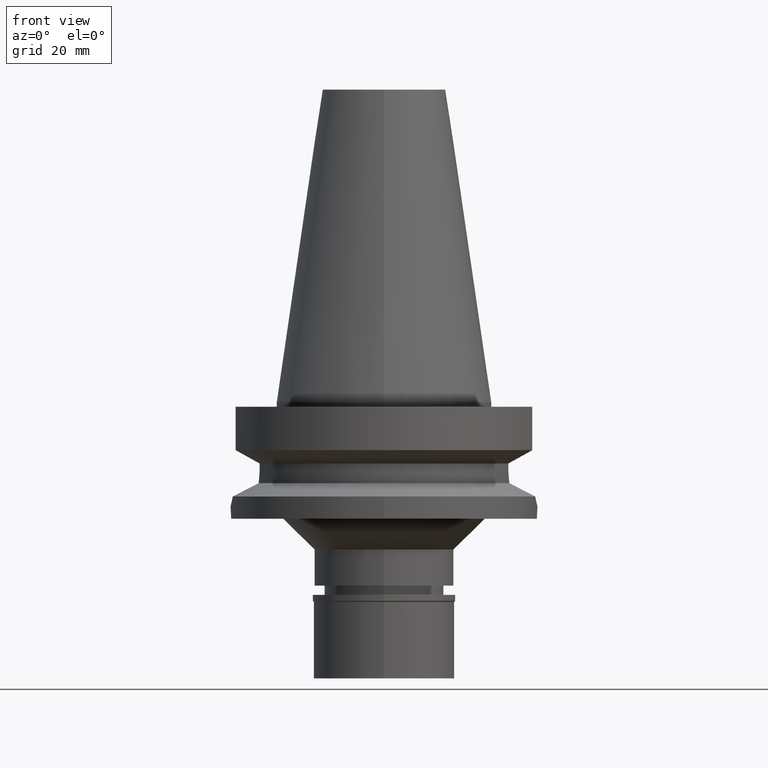
[diagram: clean part render]
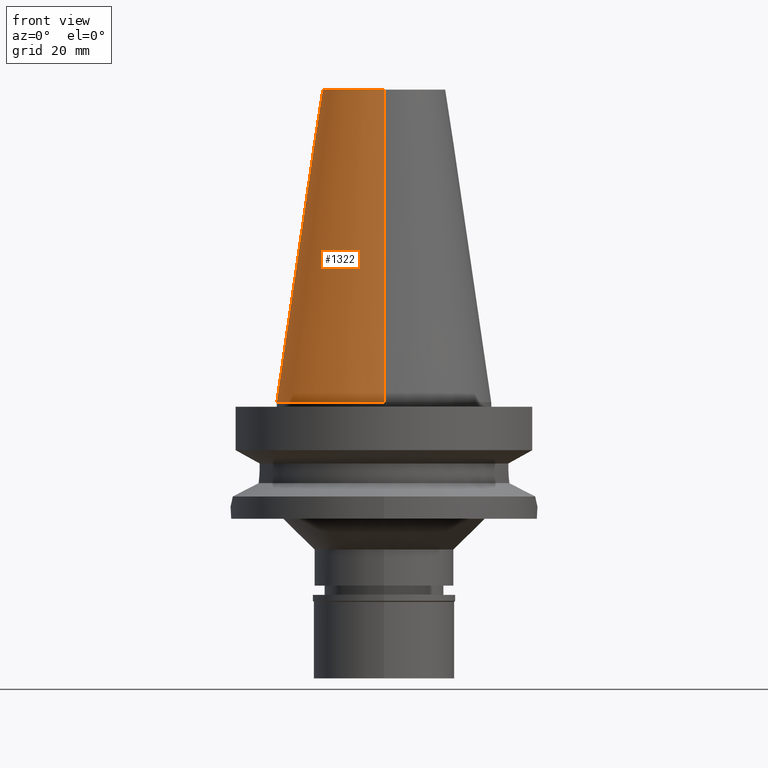
[diagram: same view with one face highlighted and labeled with its STEP entity id]
A machine part, front view. The second image highlights one B-rep face of the part: STEP entity #1322.
In plain terms, the highlighted conical surface has half-angle 8.297 deg.
Its self-contained STEP definition (entity closure, byte-faithful):
#117 = CONICAL_SURFACE ( 'NONE', #857, 27.50221485948000222, 0.1448099680379422438 ) ;
#183 = EDGE_CURVE ( 'NONE', #1285, #376, #684, .T. ) ;
#209 = CARTESIAN_POINT ( 'NONE',  ( 0.0000000000000000000, -20.07942971896000017, 101.7999999999999972 ) ) ;
#327 = CIRCLE ( 'NONE', #1530, 34.92499999999999716 ) ;
#343 = FACE_OUTER_BOUND ( 'NONE', #2591, .T. ) ;
#376 = VERTEX_POINT ( 'NONE', #810 ) ;
#394 = DIRECTION ( 'NONE',  ( 0.0000000000000000000, -0.1443043893538948075, -0.9895333461855641000 ) ) ;
#452 = DIRECTION ( 'NONE',  ( 0.0000000000000000000, -1.000000000000000000, 0.0000000000000000000 ) ) ;
#553 = EDGE_CURVE ( 'NONE', #2624, #880, #1353, .T. ) ;
#602 = ORIENTED_EDGE ( 'NONE', *, *, #2532, .F. ) ;
#645 = DIRECTION ( 'NONE',  ( 0.0000000000000000000, 0.0000000000000000000, -1.000000000000000000 ) ) ;
#684 = LINE ( 'NONE', #1192, #1164 ) ;
#798 = ORIENTED_EDGE ( 'NONE', *, *, #1612, .T. ) ;
#810 = CARTESIAN_POINT ( 'NONE',  ( 0.0000000000000000000, 34.92499999999999716, 4.263256414560999963E-13 ) ) ;
#857 = AXIS2_PLACEMENT_3D ( 'NONE', #2664, #1944, #1257 ) ;
#880 = VERTEX_POINT ( 'NONE', #2901 ) ;
#1007 = ORIENTED_EDGE ( 'NONE', *, *, #553, .F. ) ;
#1103 = DIRECTION ( 'NONE',  ( 0.0000000000000000000, -1.000000000000000000, 0.0000000000000000000 ) ) ;
#1159 = AXIS2_PLACEMENT_3D ( 'NONE', #1771, #2767, #452 ) ;
#1164 = VECTOR ( 'NONE', #1469, 1000.000000000000114 ) ;
#1192 = CARTESIAN_POINT ( 'NONE',  ( 0.0000000000000000000, 20.07942971896000017, 101.7999999999999972 ) ) ;
#1257 = DIRECTION ( 'NONE',  ( 0.0000000000000000000, -1.000000000000000000, 0.0000000000000000000 ) ) ;
#1285 = VERTEX_POINT ( 'NONE', #1643 ) ;
#1322 = ADVANCED_FACE ( 'NONE', ( #343 ), #117, .T. ) ;
#1348 = CARTESIAN_POINT ( 'NONE',  ( 0.0000000000000000000, 1.847992019912999597E-14, 3.979039320256999774E-13 ) ) ;
#1353 = LINE ( 'NONE', #3007, #2607 ) ;
#1469 = DIRECTION ( 'NONE',  ( 0.0000000000000000000, 0.1443043893538948075, -0.9895333461855641000 ) ) ;
#1530 = AXIS2_PLACEMENT_3D ( 'NONE', #1348, #645, #1103 ) ;
#1612 = EDGE_CURVE ( 'NONE', #2624, #1285, #2096, .T. ) ;
#1643 = CARTESIAN_POINT ( 'NONE',  ( 0.0000000000000000000, 20.07942971896000017, 101.7999999999999972 ) ) ;
#1771 = CARTESIAN_POINT ( 'NONE',  ( 0.0000000000000000000, 1.847992019912999597E-14, 101.7999999999999972 ) ) ;
#1944 = DIRECTION ( 'NONE',  ( 0.0000000000000000000, 0.0000000000000000000, -1.000000000000000000 ) ) ;
#2096 = CIRCLE ( 'NONE', #1159, 20.07942971896000017 ) ;
#2316 = ORIENTED_EDGE ( 'NONE', *, *, #183, .T. ) ;
#2532 = EDGE_CURVE ( 'NONE', #880, #376, #327, .T. ) ;
#2591 = EDGE_LOOP ( 'NONE', ( #602, #1007, #798, #2316 ) ) ;
#2607 = VECTOR ( 'NONE', #394, 1000.000000000000114 ) ;
#2624 = VERTEX_POINT ( 'NONE', #209 ) ;
#2664 = CARTESIAN_POINT ( 'NONE',  ( 0.0000000000000000000, 1.847992019912999597E-14, 50.89999999999999858 ) ) ;
#2767 = DIRECTION ( 'NONE',  ( 0.0000000000000000000, 0.0000000000000000000, -1.000000000000000000 ) ) ;
#2901 = CARTESIAN_POINT ( 'NONE',  ( 0.0000000000000000000, -34.92499999999999716, 4.263256414560999963E-13 ) ) ;
#3007 = CARTESIAN_POINT ( 'NONE',  ( 0.0000000000000000000, -20.07942971896000017, 101.7999999999999972 ) ) ;